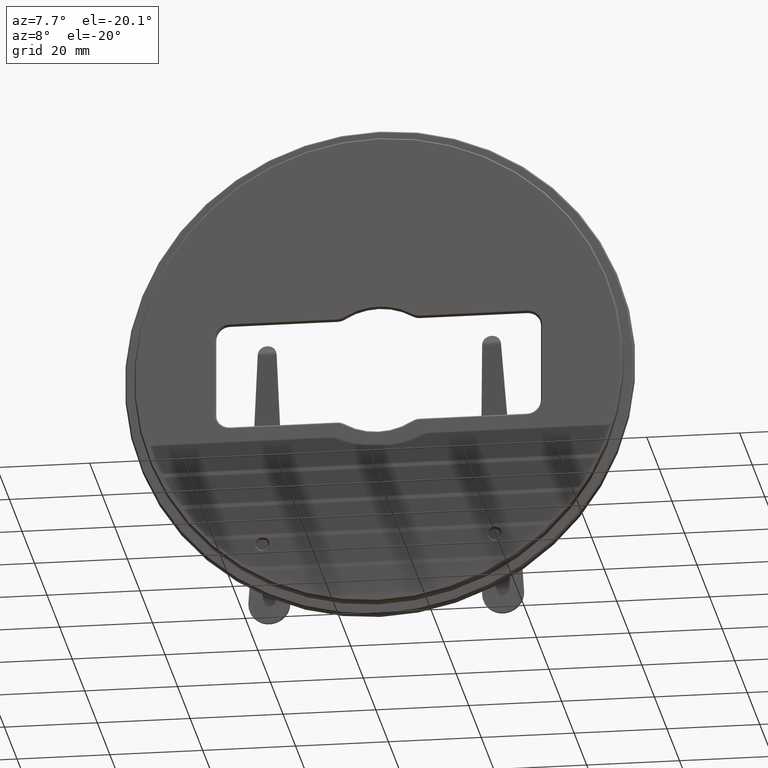
[diagram: clean part render]
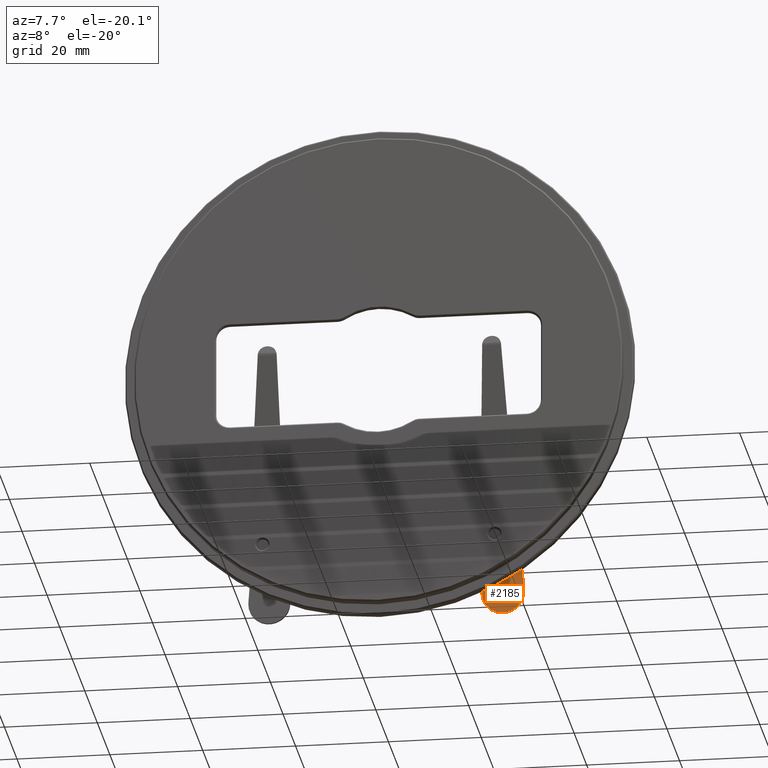
[diagram: same view with one face highlighted and labeled with its STEP entity id]
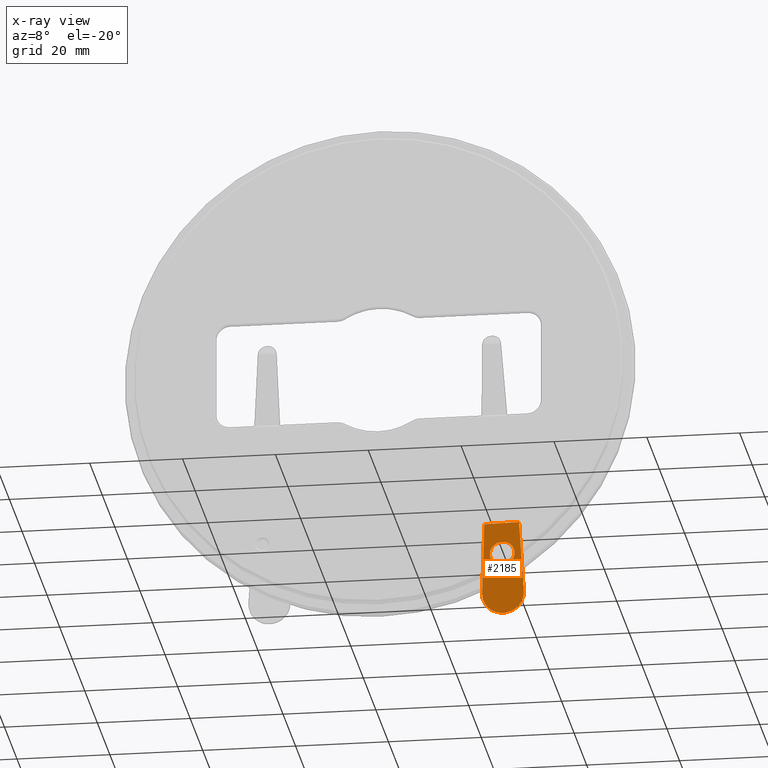
[diagram: x-ray of the same camera — body ghosted, the highlighted face saturated]
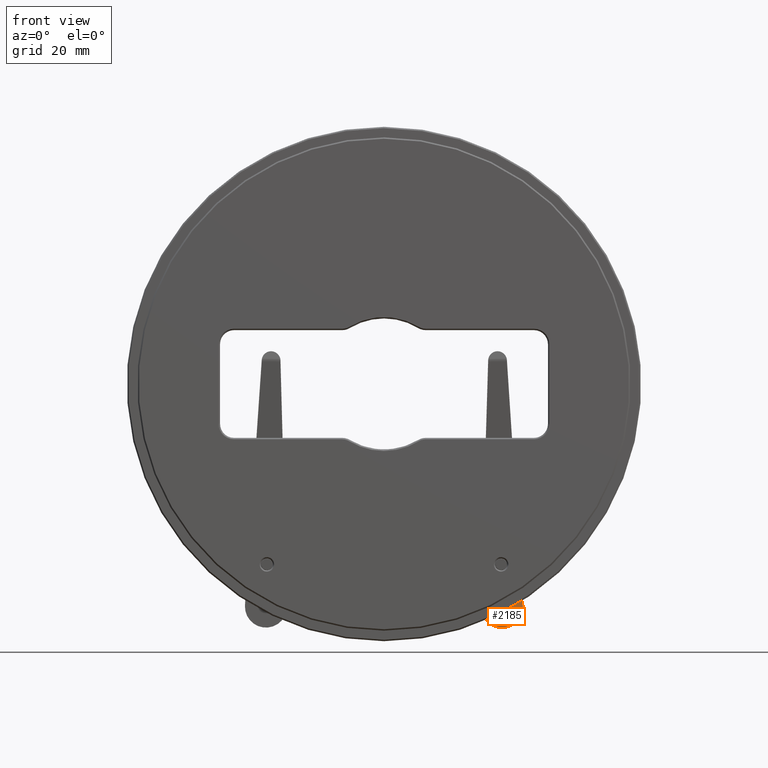
[diagram: same view with one face highlighted and labeled with its STEP entity id]
A machine part, auxiliary view. The second image highlights one B-rep face of the part: STEP entity #2185.
The next image is the same camera in x-ray: the body ghosted, the highlighted face saturated — about 0% of this face is hidden behind the body in this view.
A second angle (front view) of the same face is appended — the face is thin or edge-on in the first view.
In plain terms, the highlighted planar face has unit normal (0, 1, 0).
Its self-contained STEP definition (entity closure, byte-faithful):
#251 = CIRCLE ( 'NONE', #889, 2.650000000000000355 ) ;
#271 = ORIENTED_EDGE ( 'NONE', *, *, #5507, .F. ) ;
#274 = ORIENTED_EDGE ( 'NONE', *, *, #2745, .F. ) ;
#442 = EDGE_CURVE ( 'NONE', #3171, #457, #4962, .T. ) ;
#457 = VERTEX_POINT ( 'NONE', #1619 ) ;
#555 = AXIS2_PLACEMENT_3D ( 'NONE', #7534, #2689, #5146 ) ;
#776 = CARTESIAN_POINT ( 'NONE',  ( 0.2142857142857138297, 11.50000000000000000, -4.494895063586361594 ) ) ;
#836 = CARTESIAN_POINT ( 'NONE',  ( 5.510910596163087583E-16, 11.50000000000000000, 4.499999999999999112 ) ) ;
#889 = AXIS2_PLACEMENT_3D ( 'NONE', #6266, #5710, #7582 ) ;
#1032 = LINE ( 'NONE', #1539, #1116 ) ;
#1116 = VECTOR ( 'NONE', #3339, 1000.000000000000000 ) ;
#1121 = AXIS2_PLACEMENT_3D ( 'NONE', #7720, #2297, #4721 ) ;
#1296 = VERTEX_POINT ( 'NONE', #7672 ) ;
#1403 = CARTESIAN_POINT ( 'NONE',  ( 0.000000000000000000, 11.50000000000000000, 0.000000000000000000 ) ) ;
#1404 = EDGE_CURVE ( 'NONE', #457, #5777, #2358, .T. ) ;
#1438 = CIRCLE ( 'NONE', #3549, 4.499999999999999112 ) ;
#1539 = CARTESIAN_POINT ( 'NONE',  ( 15.87867965644035273, 11.50000000000000000, -6.000000000000000000 ) ) ;
#1619 = CARTESIAN_POINT ( 'NONE',  ( 0.2142857142857141628, 11.50000000000000000, 4.494895063586362483 ) ) ;
#2043 = CARTESIAN_POINT ( 'NONE',  ( 9.000000000000001776, 11.50000000000000000, -2.650000000000000355 ) ) ;
#2185 = ADVANCED_FACE ( 'NONE', ( #2351, #5701 ), #5738, .F. ) ;
#2230 = DIRECTION ( 'NONE',  ( 0.000000000000000000, 0.000000000000000000, 1.000000000000000000 ) ) ;
#2297 = DIRECTION ( 'NONE',  ( 0.000000000000000000, -1.000000000000000000, -0.000000000000000000 ) ) ;
#2298 = VERTEX_POINT ( 'NONE', #7276 ) ;
#2351 = FACE_BOUND ( 'NONE', #3513, .T. ) ;
#2358 = LINE ( 'NONE', #5919, #5343 ) ;
#2689 = DIRECTION ( 'NONE',  ( -0.000000000000000000, 1.000000000000000000, 0.000000000000000000 ) ) ;
#2745 = EDGE_CURVE ( 'NONE', #1296, #5345, #7648, .T. ) ;
#3171 = VERTEX_POINT ( 'NONE', #836 ) ;
#3300 = DIRECTION ( 'NONE',  ( -0.000000000000000000, 1.000000000000000000, 0.000000000000000000 ) ) ;
#3330 = ORIENTED_EDGE ( 'NONE', *, *, #442, .F. ) ;
#3339 = DIRECTION ( 'NONE',  ( -0.000000000000000000, -0.000000000000000000, 1.000000000000000000 ) ) ;
#3513 = EDGE_LOOP ( 'NONE', ( #271, #4652 ) ) ;
#3549 = AXIS2_PLACEMENT_3D ( 'NONE', #1403, #6858, #6786 ) ;
#3564 = CARTESIAN_POINT ( 'NONE',  ( 9.000000000000001776, 11.50000000000000000, 2.650000000000000355 ) ) ;
#3853 = EDGE_LOOP ( 'NONE', ( #274, #5959, #5687, #7402, #3330, #5474 ) ) ;
#3953 = AXIS2_PLACEMENT_3D ( 'NONE', #6964, #3300, #4626 ) ;
#3956 = EDGE_CURVE ( 'NONE', #2298, #1296, #5625, .T. ) ;
#4099 = EDGE_CURVE ( 'NONE', #5345, #3171, #1438, .T. ) ;
#4167 = DIRECTION ( 'NONE',  ( 0.9988655696858586008, 0.000000000000000000, -0.04761904761904760253 ) ) ;
#4533 = CIRCLE ( 'NONE', #1121, 2.650000000000000355 ) ;
#4626 = DIRECTION ( 'NONE',  ( 0.000000000000000000, 0.000000000000000000, 1.000000000000000000 ) ) ;
#4652 = ORIENTED_EDGE ( 'NONE', *, *, #5224, .F. ) ;
#4721 = DIRECTION ( 'NONE',  ( 0.000000000000000000, 0.000000000000000000, 1.000000000000000000 ) ) ;
#4723 = EDGE_CURVE ( 'NONE', #2298, #5777, #1032, .T. ) ;
#4833 = VERTEX_POINT ( 'NONE', #3564 ) ;
#4962 = CIRCLE ( 'NONE', #3953, 4.499999999999999112 ) ;
#5146 = DIRECTION ( 'NONE',  ( 0.000000000000000000, -0.000000000000000000, 1.000000000000000000 ) ) ;
#5193 = DIRECTION ( 'NONE',  ( -0.000000000000000000, 1.000000000000000000, 0.000000000000000000 ) ) ;
#5224 = EDGE_CURVE ( 'NONE', #5510, #4833, #4533, .T. ) ;
#5231 = CARTESIAN_POINT ( 'NONE',  ( 0.000000000000000000, 11.50000000000000000, 0.000000000000000000 ) ) ;
#5236 = AXIS2_PLACEMENT_3D ( 'NONE', #5231, #5193, #2230 ) ;
#5343 = VECTOR ( 'NONE', #4167, 1000.000000000000000 ) ;
#5345 = VERTEX_POINT ( 'NONE', #5357 ) ;
#5357 = CARTESIAN_POINT ( 'NONE',  ( 0.000000000000000000, 11.50000000000000000, -4.499999999999999112 ) ) ;
#5474 = ORIENTED_EDGE ( 'NONE', *, *, #4099, .F. ) ;
#5507 = EDGE_CURVE ( 'NONE', #4833, #5510, #251, .T. ) ;
#5510 = VERTEX_POINT ( 'NONE', #2043 ) ;
#5583 = DIRECTION ( 'NONE',  ( -0.9988655696858586008, 0.000000000000000000, -0.04761904761904751926 ) ) ;
#5625 = LINE ( 'NONE', #776, #6225 ) ;
#5687 = ORIENTED_EDGE ( 'NONE', *, *, #4723, .T. ) ;
#5701 = FACE_OUTER_BOUND ( 'NONE', #3853, .T. ) ;
#5710 = DIRECTION ( 'NONE',  ( 0.000000000000000000, -1.000000000000000000, -0.000000000000000000 ) ) ;
#5738 = PLANE ( 'NONE',  #555 ) ;
#5777 = VERTEX_POINT ( 'NONE', #7253 ) ;
#5919 = CARTESIAN_POINT ( 'NONE',  ( 0.2142857142857141628, 11.50000000000000000, 4.494895063586362483 ) ) ;
#5959 = ORIENTED_EDGE ( 'NONE', *, *, #3956, .F. ) ;
#6225 = VECTOR ( 'NONE', #5583, 1000.000000000000000 ) ;
#6266 = CARTESIAN_POINT ( 'NONE',  ( 9.000000000000001776, 11.50000000000000000, 0.000000000000000000 ) ) ;
#6786 = DIRECTION ( 'NONE',  ( 0.000000000000000000, 0.000000000000000000, 1.000000000000000000 ) ) ;
#6858 = DIRECTION ( 'NONE',  ( -0.000000000000000000, 1.000000000000000000, 0.000000000000000000 ) ) ;
#6964 = CARTESIAN_POINT ( 'NONE',  ( 0.000000000000000000, 11.50000000000000000, 0.000000000000000000 ) ) ;
#7253 = CARTESIAN_POINT ( 'NONE',  ( 15.87867965644035273, 11.50000000000000000, 3.748124383233877310 ) ) ;
#7276 = CARTESIAN_POINT ( 'NONE',  ( 15.87867965644035273, 11.50000000000000000, -3.748124383233876422 ) ) ;
#7402 = ORIENTED_EDGE ( 'NONE', *, *, #1404, .F. ) ;
#7534 = CARTESIAN_POINT ( 'NONE',  ( -4.499999999999999112, 11.50000000000000000, -6.000000000000000000 ) ) ;
#7582 = DIRECTION ( 'NONE',  ( 0.000000000000000000, 0.000000000000000000, 1.000000000000000000 ) ) ;
#7648 = CIRCLE ( 'NONE', #5236, 4.499999999999999112 ) ;
#7672 = CARTESIAN_POINT ( 'NONE',  ( 0.2142857142857138297, 11.50000000000000000, -4.494895063586361594 ) ) ;
#7720 = CARTESIAN_POINT ( 'NONE',  ( 9.000000000000001776, 11.50000000000000000, 0.000000000000000000 ) ) ;